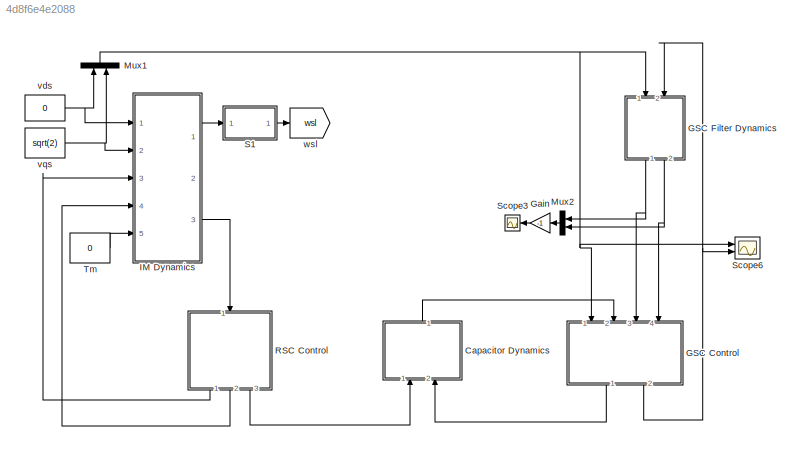
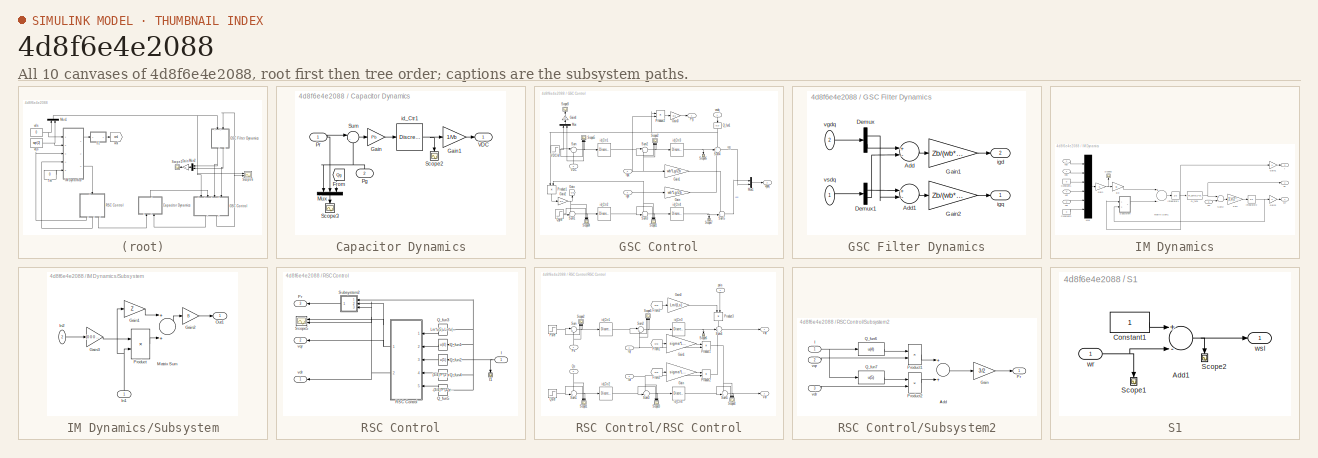
[diagram: thumbnail index - all 10 canvases of the model, root first then tree order]
MODEL slx_4d8f6e4e2088
KIND model
BLOCK [SubSystem] Capacitor Dynamics
  FunctionWithSeparateData = off
  MaskHideContents = off
  MinAlgLoopOccurrences = off
  Opaque = off
  Ports = [2, 1]
  PropExecContextOutsideSubsystem = off
  RTWSystemCode = Auto
  RequestExecContextInheritance = off
BLOCK [From] Capacitor Dynamics/From
  GotoTag = Qg
  TagVisibility = global
BLOCK [Gain] Capacitor Dynamics/Gain
  Gain = Pb
  OutDataTypeStr = Inherit: Inherit via internal rule
  ParamDataTypeStr = Inherit: Inherit via internal rule
  SaturateOnIntegerOverflow = off
BLOCK [Gain] Capacitor Dynamics/Gain1
  Gain = 1/Vb
  OutDataTypeStr = Inherit: Inherit via internal rule
  ParamDataTypeStr = Inherit: Inherit via internal rule
  SaturateOnIntegerOverflow = off
BLOCK [Mux] Capacitor Dynamics/Mux
  DisplayOption = bar
  Inputs = 3
  Ports = [3, 1]
BLOCK [Inport] Capacitor Dynamics/Pg
  IconDisplay = Port number
  Port = 2
BLOCK [Inport] Capacitor Dynamics/Pr
  IconDisplay = Port number
BLOCK [Scope] Capacitor Dynamics/Scope2
  DataFormat = StructureWithTime
  Floating = off
  LimitDataPoints = off
  NumInputPorts = 1
  Ports = [1]
  SampleTime = 0
  SaveName = ScopeData5
  ShowLegends = off
  YMax = 1230
  YMin = 1190
BLOCK [Scope] Capacitor Dynamics/Scope3
  DataFormat = StructureWithTime
  Floating = off
  LimitDataPoints = off
  NumInputPorts = 1
  Ports = [1]
  SampleTime = 0
  SaveName = ScopeData12
  ShowLegends = off
  YMax = 0.2
  YMin = -0.5
  ZoomMode = xonly
BLOCK [Sum] Capacitor Dynamics/Sum
  IconShape = round
  InputSameDT = off
  Inputs = |--
  OutDataTypeStr = Inherit: Inherit via internal rule
  Ports = [2, 1]
  SaturateOnIntegerOverflow = off
BLOCK [Outport] Capacitor Dynamics/VDC
  IconDisplay = Port number
BLOCK [Reference] Capacitor Dynamics/id_Ctr1  REF=powerlib_extras/Discrete 
Control Blocks/Discrete
PI Controller
  Init = 1200
  Ki = 1/(C*VDC0)
  Kp = 0
  Par_Limits = [10e5 -10e5]
  Ports = [1, 1]
  SourceBlock = powerlib_extras/Discrete \nControl Blocks/Discrete\nPI Controller
  SourceType = Discrete PI Controller
  Ts = 50e-6
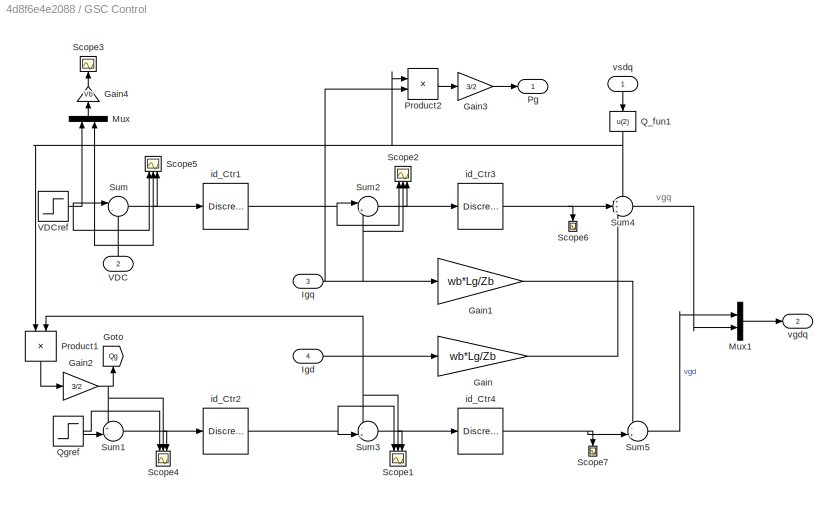
BLOCK [SubSystem] GSC Control
  FunctionWithSeparateData = off
  MaskHideContents = off
  MinAlgLoopOccurrences = off
  Opaque = off
  Ports = [4, 2]
  PropExecContextOutsideSubsystem = off
  RTWSystemCode = Auto
  RequestExecContextInheritance = off
BLOCK [Gain] GSC Control/Gain
  Gain = wb*Lg/Zb
  OutDataTypeStr = Inherit: Inherit via internal rule
  ParamDataTypeStr = Inherit: Inherit via internal rule
  SaturateOnIntegerOverflow = off
BLOCK [Gain] GSC Control/Gain1
  Gain = wb*Lg/Zb
  OutDataTypeStr = Inherit: Inherit via internal rule
  ParamDataTypeStr = Inherit: Inherit via internal rule
  SaturateOnIntegerOverflow = off
BLOCK [Gain] GSC Control/Gain2
  Gain = 3/2
  OutDataTypeStr = Inherit: Inherit via internal rule
  ParamDataTypeStr = Inherit: Inherit via internal rule
  SaturateOnIntegerOverflow = off
BLOCK [Gain] GSC Control/Gain3
  Gain = 3/2
  OutDataTypeStr = Inherit: Inherit via internal rule
  ParamDataTypeStr = Inherit: Inherit via internal rule
  SaturateOnIntegerOverflow = off
BLOCK [Gain] GSC Control/Gain4
  Gain = Vb
  OutDataTypeStr = Inherit: Inherit via internal rule
  ParamDataTypeStr = Inherit: Inherit via internal rule
  SaturateOnIntegerOverflow = off
BLOCK [Goto] GSC Control/Goto
  GotoTag = Qg
  TagVisibility = global
BLOCK [Inport] GSC Control/Igd
  IconDisplay = Port number
  Port = 4
BLOCK [Inport] GSC Control/Igq
  IconDisplay = Port number
  Port = 3
BLOCK [Mux] GSC Control/Mux
  DisplayOption = bar
  Inputs = 2
  Ports = [2, 1]
BLOCK [Mux] GSC Control/Mux1
  DisplayOption = bar
  Inputs = 2
  Ports = [2, 1]
BLOCK [Outport] GSC Control/Pg
  IconDisplay = Port number
BLOCK [Product] GSC Control/Product1
  InputSameDT = off
  OutDataTypeStr = Inherit: Inherit via internal rule
  Ports = [2, 1]
  RndMeth = Floor
  SaturateOnIntegerOverflow = off
BLOCK [Product] GSC Control/Product2
  InputSameDT = off
  OutDataTypeStr = Inherit: Inherit via internal rule
  Ports = [2, 1]
  RndMeth = Floor
  SaturateOnIntegerOverflow = off
BLOCK [Fcn] GSC Control/Q_fun1
  Expr = u(2)
BLOCK [Step] GSC Control/Qgref
  After = 0
  SampleTime = 0
BLOCK [Scope] GSC Control/Scope1
  DataFormat = StructureWithTime
  Floating = off
  LimitDataPoints = off
  NumInputPorts = 3
  Ports = [3]
  SampleTime = 0
  SaveName = ScopeData6
  ShowLegends = off
  YMax = 5~5~0.1
  YMin = -15~-15~-0.1
  ZoomMode = yonly
BLOCK [Scope] GSC Control/Scope2
  DataFormat = StructureWithTime
  Floating = off
  LimitDataPoints = off
  NumInputPorts = 3
  Ports = [3]
  SampleTime = 0
  SaveName = ScopeData2
  ShowLegends = off
  YMax = 0.1~0.5~0.1
  YMin = -0.5~-0.5~-0.1
  ZoomMode = yonly
BLOCK [Scope] GSC Control/Scope3
  DataFormat = StructureWithTime
  Floating = off
  LimitDataPoints = off
  NumInputPorts = 1
  Ports = [1]
  SampleTime = 0
  SaveName = ScopeData22
  ShowLegends = off
  YMax = 1225
  YMin = 1195
  ZoomMode = xonly
BLOCK [Scope] GSC Control/Scope4
  DataFormat = StructureWithTime
  Floating = off
  LimitDataPoints = off
  NumInputPorts = 3
  Ports = [3]
  SampleTime = 0
  SaveName = ScopeData9
  ShowLegends = off
  YMax = 1~0.5~0.5
  YMin = -1~-0.5~-0.5
BLOCK [Scope] GSC Control/Scope5
  DataFormat = StructureWithTime
  Floating = off
  LimitDataPoints = off
  NumInputPorts = 3
  Ports = [3]
  SampleTime = 0
  SaveName = ScopeData11
  ShowLegends = off
  YMax = 3.07~3.065~0.055
  YMin = 3~3.01~-0.055
  ZoomMode = xonly
BLOCK [Scope] GSC Control/Scope6
  DataFormat = StructureWithTime
  Floating = off
  LimitDataPoints = off
  NumInputPorts = 1
  Ports = [1]
  SampleTime = 0
  SaveName = ScopeData24
  ShowLegends = off
  YMax = 1
  YMin = -1
  ZoomMode = yonly
BLOCK [Scope] GSC Control/Scope7
  DataFormat = StructureWithTime
  Floating = off
  LimitDataPoints = off
  NumInputPorts = 1
  Ports = [1]
  SampleTime = 0
  SaveName = ScopeData25
  ShowLegends = off
  YMax = 1
  YMin = -1
  ZoomMode = yonly
BLOCK [Sum] GSC Control/Sum
  IconShape = round
  InputSameDT = off
  Inputs = |-+
  OutDataTypeStr = Inherit: Inherit via internal rule
  Ports = [2, 1]
  SaturateOnIntegerOverflow = off
BLOCK [Sum] GSC Control/Sum1
  IconShape = round
  InputSameDT = off
  Inputs = +-|
  OutDataTypeStr = Inherit: Inherit via internal rule
  Ports = [2, 1]
  SaturateOnIntegerOverflow = off
BLOCK [Sum] GSC Control/Sum2
  IconShape = round
  InputSameDT = off
  Inputs = |+-
  OutDataTypeStr = Inherit: Inherit via internal rule
  Ports = [2, 1]
  SaturateOnIntegerOverflow = off
BLOCK [Sum] GSC Control/Sum3
  IconShape = round
  InputSameDT = off
  Inputs = -+|
  OutDataTypeStr = Inherit: Inherit via internal rule
  Ports = [2, 1]
  SaturateOnIntegerOverflow = off
BLOCK [Sum] GSC Control/Sum4
  IconShape = round
  InputSameDT = off
  Inputs = +++
  OutDataTypeStr = Inherit: Inherit via internal rule
  Ports = [3, 1]
  SaturateOnIntegerOverflow = off
BLOCK [Sum] GSC Control/Sum5
  IconShape = round
  InputSameDT = off
  Inputs = -+|
  OutDataTypeStr = Inherit: Inherit via internal rule
  Ports = [2, 1]
  SaturateOnIntegerOverflow = off
BLOCK [Inport] GSC Control/VDC
  IconDisplay = Port number
  Port = 2
BLOCK [Step] GSC Control/VDCref
  After = 1220/Vb
  Before = 1200/Vb
  SampleTime = 0
  Time = 20
BLOCK [Reference] GSC Control/id_Ctr1  REF=powerlib_extras/Discrete 
Control Blocks/Discrete
PI Controller
  Init = 0
  Ki = Ki
  Kp = Kp
  Par_Limits = [10e5 -10e5]
  Ports = [1, 1]
  SourceBlock = powerlib_extras/Discrete \nControl Blocks/Discrete\nPI Controller
  SourceType = Discrete PI Controller
  Ts = 50e-6
BLOCK [Reference] GSC Control/id_Ctr2  REF=powerlib_extras/Discrete 
Control Blocks/Discrete
PI Controller
  Init = -0.0301
  Ki = Ki
  Kp = Kp
  Par_Limits = [10e5 -10e5]
  Ports = [1, 1]
  SourceBlock = powerlib_extras/Discrete \nControl Blocks/Discrete\nPI Controller
  SourceType = Discrete PI Controller
  Ts = 50e-6
BLOCK [Reference] GSC Control/id_Ctr3  REF=powerlib_extras/Discrete 
Control Blocks/Discrete
PI Controller
  Init = 0
  Ki = Ki
  Kp = Kp
  Par_Limits = [10e5 -10e5]
  Ports = [1, 1]
  SourceBlock = powerlib_extras/Discrete \nControl Blocks/Discrete\nPI Controller
  SourceType = Discrete PI Controller
  Ts = 50e-6
BLOCK [Reference] GSC Control/id_Ctr4  REF=powerlib_extras/Discrete 
Control Blocks/Discrete
PI Controller
  Init = 0
  Ki = Ki
  Kp = Kp
  Par_Limits = [10e5 -10e5]
  Ports = [1, 1]
  SourceBlock = powerlib_extras/Discrete \nControl Blocks/Discrete\nPI Controller
  SourceType = Discrete PI Controller
  Ts = 50e-6
BLOCK [Outport] GSC Control/vgdq
  IconDisplay = Port number
  Port = 2
BLOCK [Inport] GSC Control/vsdq
  IconDisplay = Port number
BLOCK [SubSystem] GSC Filter Dynamics
  FunctionWithSeparateData = off
  MaskHideContents = off
  MinAlgLoopOccurrences = off
  Opaque = off
  Ports = [2, 2]
  PropExecContextOutsideSubsystem = off
  RTWSystemCode = Auto
  RequestExecContextInheritance = off
BLOCK [Sum] GSC Filter Dynamics/Add
  InputSameDT = off
  Inputs = +-
  OutDataTypeStr = Inherit: Inherit via internal rule
  Ports = [2, 1]
  SaturateOnIntegerOverflow = off
BLOCK [Sum] GSC Filter Dynamics/Add1
  InputSameDT = off
  Inputs = +-
  OutDataTypeStr = Inherit: Inherit via internal rule
  Ports = [2, 1]
  SaturateOnIntegerOverflow = off
BLOCK [Demux] GSC Filter Dynamics/Demux
  DisplayOption = bar
  Outputs = 2
  Ports = [1, 2]
BLOCK [Demux] GSC Filter Dynamics/Demux1
  DisplayOption = bar
  Outputs = 2
  Ports = [1, 2]
BLOCK [Gain] GSC Filter Dynamics/Gain1
  Gain = Zb/(wb*Lg)
  OutDataTypeStr = Inherit: Inherit via internal rule
  ParamDataTypeStr = Inherit: Inherit via internal rule
  SaturateOnIntegerOverflow = off
BLOCK [Gain] GSC Filter Dynamics/Gain2
  Gain = Zb/(wb*Lg)
  OutDataTypeStr = Inherit: Inherit via internal rule
  ParamDataTypeStr = Inherit: Inherit via internal rule
  SaturateOnIntegerOverflow = off
BLOCK [Outport] GSC Filter Dynamics/igd
  IconDisplay = Port number
  Port = 2
BLOCK [Outport] GSC Filter Dynamics/igq
  IconDisplay = Port number
BLOCK [Inport] GSC Filter Dynamics/vgdq
  IconDisplay = Port number
  Port = 2
BLOCK [Inport] GSC Filter Dynamics/vsdq
  IconDisplay = Port number
BLOCK [Gain] Gain
  Gain = -1
  OutDataTypeStr = Inherit: Inherit via internal rule
  ParamDataTypeStr = Inherit: Inherit via internal rule
  SaturateOnIntegerOverflow = off
BLOCK [SubSystem] IM Dynamics
  FunctionWithSeparateData = off
  MaskHideContents = off
  MinAlgLoopOccurrences = off
  Opaque = off
  Ports = [5, 3]
  PropExecContextOutsideSubsystem = off
  RTWSystemCode = Auto
  RequestExecContextInheritance = off
BLOCK [Gain] IM Dynamics/1//2H
  Gain = (1)/(2*H)
  OutDataTypeStr = Inherit: Inherit via internal rule
  ParamDataTypeStr = Inherit: Inherit via internal rule
  SaturateOnIntegerOverflow = off
BLOCK [Gain] IM Dynamics/Bb
  Gain = B
  Multiplication = Matrix(K*u)
  OutDataTypeStr = Inherit: Inherit via internal rule
  ParamDataTypeStr = Inherit: Inherit via internal rule
  SaturateOnIntegerOverflow = off
BLOCK [Constant] IM Dynamics/Constant1
  Value = 0
BLOCK [Constant] IM Dynamics/Constant2
  Value = 0
BLOCK [Gain] IM Dynamics/Gain
  OutDataTypeStr = Inherit: Inherit via internal rule
  ParamDataTypeStr = Inherit: Inherit via internal rule
  SaturateOnIntegerOverflow = off
BLOCK [Gain] IM Dynamics/Gain1
  OutDataTypeStr = Inherit: Inherit via internal rule
  ParamDataTypeStr = Inherit: Inherit via internal rule
  SaturateOnIntegerOverflow = off
BLOCK [Gain] IM Dynamics/Gain2
  OutDataTypeStr = Inherit: Inherit via internal rule
  ParamDataTypeStr = Inherit: Inherit via internal rule
  SaturateOnIntegerOverflow = off
BLOCK [Outport] IM Dynamics/I
  IconDisplay = Port number
  Port = 3
BLOCK [Integrator] IM Dynamics/Integrator1
  InitialCondition = [-0.57; 0; 0; 0.57; 0.358; 0]
  Ports = [1, 1]
BLOCK [Integrator] IM Dynamics/Integrator2
  InitialCondition = 0.95
  LimitOutput = on
  LowerSaturationLimit = 0.94999999999
  Ports = [1, 1]
  UpperSaturationLimit = 0.95000000001
BLOCK [Sum] IM Dynamics/Matrix Sum1
  InputSameDT = off
  Inputs = +-
  OutDataTypeStr = Inherit: Inherit via internal rule
  Ports = [2, 1]
  SaturateOnIntegerOverflow = off
BLOCK [Mux] IM Dynamics/Mux
  DisplayOption = bar
  Inputs = 6
  Ports = [6, 1]
BLOCK [Fcn] IM Dynamics/Q_fun1
  Expr = Xm_pu*u(1)*u(5)-Xm_pu*u(2)*u(4)
BLOCK [Scope] IM Dynamics/Scope2
  DataFormat = StructureWithTime
  Floating = off
  LimitDataPoints = off
  NumInputPorts = 1
  Ports = [1]
  SampleTime = 0
  SaveName = ScopeData8
  ShowLegends = off
  YMax = 1.05e+06
  YMin = 950000
  ZoomMode = yonly
BLOCK [SubSystem] IM Dynamics/Subsystem
  FunctionWithSeparateData = off
  MaskHideContents = off
  MinAlgLoopOccurrences = off
  Opaque = off
  Ports = [2, 1]
  PropExecContextOutsideSubsystem = off
  RTWSystemCode = Auto
  RequestExecContextInheritance = off
BLOCK [Gain] IM Dynamics/Subsystem/Gain1
  Gain = Z
  Multiplication = Matrix(K*u)
  OutDataTypeStr = Inherit: Inherit via internal rule
  ParamDataTypeStr = Inherit: Inherit via internal rule
  SaturateOnIntegerOverflow = off
BLOCK [Gain] IM Dynamics/Subsystem/Gain2
  Gain = B
  Multiplication = Matrix(K*u)
  OutDataTypeStr = Inherit: Inherit via internal rule
  ParamDataTypeStr = Inherit: Inherit via internal rule
  SaturateOnIntegerOverflow = off
BLOCK [Gain] IM Dynamics/Subsystem/Gain3
  Gain = [0 0 0 0 0 0;0 0 0 0 0 0;0 0 0 0 0 0;0 -Xm_pu 0 0 -Xr_pu 0;Xm_pu 0 0 Xr_pu 0 0;0 0 0 0 0 0]
  OutDataTypeStr = Inherit: Inherit via internal rule
  ParamDataTypeStr = Inherit: Inherit via internal rule
  SaturateOnIntegerOverflow = off
BLOCK [Inport] IM Dynamics/Subsystem/In1
  IconDisplay = Port number
BLOCK [Inport] IM Dynamics/Subsystem/In2
  IconDisplay = Port number
  Port = 2
BLOCK [Sum] IM Dynamics/Subsystem/Matrix Sum
  InputSameDT = off
  OutDataTypeStr = Inherit: Inherit via internal rule
  Ports = [2, 1]
  SaturateOnIntegerOverflow = off
BLOCK [Outport] IM Dynamics/Subsystem/Out1
  IconDisplay = Port number
BLOCK [Product] IM Dynamics/Subsystem/Product
  InputSameDT = off
  Multiplication = Matrix(*)
  OutDataTypeStr = Inherit: Inherit via internal rule
  Ports = [2, 1]
  RndMeth = Floor
  SaturateOnIntegerOverflow = off
BLOCK [Sum] IM Dynamics/Sum2
  Inputs = +-
  Ports = [2, 1]
BLOCK [Outport] IM Dynamics/Te
  IconDisplay = Port number
  Port = 2
BLOCK [Inport] IM Dynamics/Tm
  IconDisplay = Port number
  Port = 5
BLOCK [Inport] IM Dynamics/vdr
  IconDisplay = Port number
  Port = 3
BLOCK [Inport] IM Dynamics/vds
  IconDisplay = Port number
BLOCK [Inport] IM Dynamics/vqr
  IconDisplay = Port number
  Port = 4
BLOCK [Inport] IM Dynamics/vqs
  IconDisplay = Port number
  Port = 2
BLOCK [Outport] IM Dynamics/wr
  IconDisplay = Port number
BLOCK [Mux] Mux1
  DisplayOption = bar
  Inputs = 2
  Ports = [2, 1]
BLOCK [Mux] Mux2
  DisplayOption = bar
  Inputs = 2
  Ports = [2, 1]
BLOCK [SubSystem] RSC Control
  FunctionWithSeparateData = off
  MaskHideContents = off
  MinAlgLoopOccurrences = off
  Opaque = off
  Ports = [1, 3]
  PropExecContextOutsideSubsystem = off
  RTWSystemCode = Auto
  RequestExecContextInheritance = off
BLOCK [Inport] RSC Control/I
  IconDisplay = Port number
BLOCK [Scope] RSC Control/I1
  DataFormat = StructureWithTime
  Floating = off
  LimitDataPoints = off
  NumInputPorts = 1
  Ports = [1]
  SampleTime = 0
  SaveName = ScopeData1
  ShowLegends = off
  YMax = 1
  YMin = -1
  ZoomMode = yonly
BLOCK [Outport] RSC Control/Pr
  IconDisplay = Port number
  Port = 3
BLOCK [Fcn] RSC Control/Q_fun1
  Expr = u(4)
BLOCK [Fcn] RSC Control/Q_fun2
  Expr = u(5)
BLOCK [Fcn] RSC Control/Q_fun3
  Expr = Lm*u(5)+Ls*u(2)
BLOCK [Fcn] RSC Control/Q_fun4
  Expr = (3/4)*P*(2*pi*f)*(Lm/Ls)*(Lm*u(5)+Ls*u(2))*u(4)
BLOCK [Fcn] RSC Control/Q_fun5
  Expr = -(3/4)*P*(2*pi*f)*(Lm*u(5)+Ls*u(2))*u(2)
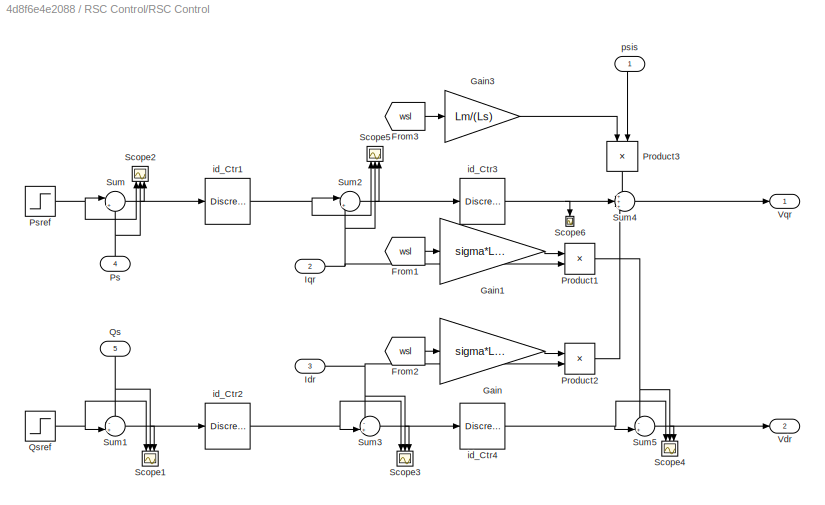
BLOCK [SubSystem] RSC Control/RSC Control
  FunctionWithSeparateData = off
  MaskHideContents = off
  MinAlgLoopOccurrences = off
  Opaque = off
  Ports = [5, 2]
  PropExecContextOutsideSubsystem = off
  RTWSystemCode = Auto
  RequestExecContextInheritance = off
BLOCK [From] RSC Control/RSC Control/From1
  GotoTag = wsl
  TagVisibility = global
BLOCK [From] RSC Control/RSC Control/From2
  GotoTag = wsl
  TagVisibility = global
BLOCK [From] RSC Control/RSC Control/From3
  GotoTag = wsl
  TagVisibility = global
BLOCK [Gain] RSC Control/RSC Control/Gain
  Gain = sigma*Lr/(Zb/wb)
  OutDataTypeStr = Inherit: Inherit via internal rule
  ParamDataTypeStr = Inherit: Inherit via internal rule
  SaturateOnIntegerOverflow = off
BLOCK [Gain] RSC Control/RSC Control/Gain1
  Gain = sigma*Lr/(Zb/wb)
  OutDataTypeStr = Inherit: Inherit via internal rule
  ParamDataTypeStr = Inherit: Inherit via internal rule
  SaturateOnIntegerOverflow = off
BLOCK [Gain] RSC Control/RSC Control/Gain3
  Gain = Lm/(Ls)
  OutDataTypeStr = Inherit: Inherit via internal rule
  ParamDataTypeStr = Inherit: Inherit via internal rule
  SaturateOnIntegerOverflow = off
BLOCK [Inport] RSC Control/RSC Control/Idr
  IconDisplay = Port number
  Port = 3
BLOCK [Inport] RSC Control/RSC Control/Iqr
  IconDisplay = Port number
  Port = 2
BLOCK [Product] RSC Control/RSC Control/Product1
  InputSameDT = off
  OutDataTypeStr = Inherit: Inherit via internal rule
  Ports = [2, 1]
  RndMeth = Floor
  SaturateOnIntegerOverflow = off
BLOCK [Product] RSC Control/RSC Control/Product2
  InputSameDT = off
  OutDataTypeStr = Inherit: Inherit via internal rule
  Ports = [2, 1]
  RndMeth = Floor
  SaturateOnIntegerOverflow = off
BLOCK [Product] RSC Control/RSC Control/Product3
  InputSameDT = off
  OutDataTypeStr = Inherit: Inherit via internal rule
  Ports = [2, 1]
  RndMeth = Floor
  SaturateOnIntegerOverflow = off
BLOCK [Inport] RSC Control/RSC Control/Ps
  IconDisplay = Port number
  Port = 4
BLOCK [Step] RSC Control/RSC Control/Psref
  After = 0.95*0.95*0.95
  Before = 0.95*0.95*0.95
  SampleTime = 0
BLOCK [Inport] RSC Control/RSC Control/Qs
  IconDisplay = Port number
  Port = 5
BLOCK [Step] RSC Control/RSC Control/Qsref
  After = 0
  SampleTime = 0
BLOCK [Scope] RSC Control/RSC Control/Scope1
  DataFormat = StructureWithTime
  Floating = off
  LimitDataPoints = off
  NumInputPorts = 3
  Ports = [3]
  SampleTime = 0
  SaveName = ScopeData4
  ShowLegends = off
  YMax = 1~1~0.1
  YMin = -1~-1~-0.1
  ZoomMode = yonly
BLOCK [Scope] RSC Control/RSC Control/Scope2
  DataFormat = StructureWithTime
  Floating = off
  LimitDataPoints = off
  NumInputPorts = 3
  Ports = [3]
  SampleTime = 0
  SaveName = ScopeData3
  ShowLegends = off
  YMax = 0.900244~0.900244~0.2
  YMin = 0.814506~0.814506~-0.2
  ZoomMode = yonly
BLOCK [Scope] RSC Control/RSC Control/Scope3
  DataFormat = StructureWithTime
  Floating = off
  LimitDataPoints = off
  NumInputPorts = 3
  Ports = [3]
  SampleTime = 0
  SaveName = ScopeData7
  ShowLegends = off
  YMax = 0.266668~0.266668~0.1
  YMin = 0.241271~0.241271~-0.1
  ZoomMode = yonly
BLOCK [Scope] RSC Control/RSC Control/Scope4
  DataFormat = StructureWithTime
  Floating = off
  LimitDataPoints = off
  NumInputPorts = 3
  Ports = [3]
  SampleTime = 0
  SaveName = ScopeData17
  ShowLegends = off
  YMax = 0.00146401~0.0081279~-0.00602923
  YMin = 0.00132459~0.00735382~-0.00666389
  ZoomMode = yonly
BLOCK [Scope] RSC Control/RSC Control/Scope5
  DataFormat = StructureWithTime
  Floating = off
  LimitDataPoints = off
  NumInputPorts = 3
  Ports = [3]
  SampleTime = 0
  SaveName = ScopeData20
  ShowLegends = off
  YMax = 0.578047~0.578038~1.25e-05
  YMin = 0.578025~0.578034~-1.25e-05
  ZoomMode = yonly
BLOCK [Scope] RSC Control/RSC Control/Scope6
  DataFormat = StructureWithTime
  Floating = off
  LimitDataPoints = off
  NumInputPorts = 1
  Ports = [1]
  SampleTime = 0
  ShowLegends = off
  YMax = 1
  YMin = -1
  ZoomMode = yonly
BLOCK [Sum] RSC Control/RSC Control/Sum
  IconShape = round
  InputSameDT = off
  Inputs = |+-
  OutDataTypeStr = Inherit: Inherit via internal rule
  Ports = [2, 1]
  SaturateOnIntegerOverflow = off
BLOCK [Sum] RSC Control/RSC Control/Sum1
  IconShape = round
  InputSameDT = off
  Inputs = -+|
  OutDataTypeStr = Inherit: Inherit via internal rule
  Ports = [2, 1]
  SaturateOnIntegerOverflow = off
BLOCK [Sum] RSC Control/RSC Control/Sum2
  IconShape = round
  InputSameDT = off
  Inputs = |+-
  OutDataTypeStr = Inherit: Inherit via internal rule
  Ports = [2, 1]
  SaturateOnIntegerOverflow = off
BLOCK [Sum] RSC Control/RSC Control/Sum3
  IconShape = round
  InputSameDT = off
  Inputs = -+|
  OutDataTypeStr = Inherit: Inherit via internal rule
  Ports = [2, 1]
  SaturateOnIntegerOverflow = off
BLOCK [Sum] RSC Control/RSC Control/Sum4
  IconShape = round
  InputSameDT = off
  Inputs = +++
  OutDataTypeStr = Inherit: Inherit via internal rule
  Ports = [3, 1]
  SaturateOnIntegerOverflow = off
BLOCK [Sum] RSC Control/RSC Control/Sum5
  IconShape = round
  InputSameDT = off
  Inputs = -+|
  OutDataTypeStr = Inherit: Inherit via internal rule
  Ports = [2, 1]
  SaturateOnIntegerOverflow = off
BLOCK [Outport] RSC Control/RSC Control/Vdr
  IconDisplay = Port number
  Port = 2
BLOCK [Outport] RSC Control/RSC Control/Vqr
  IconDisplay = Port number
BLOCK [Reference] RSC Control/RSC Control/id_Ctr1  REF=powerlib_extras/Discrete 
Control Blocks/Discrete
PI Controller
  Init = 0.578
  Ki = Ki
  Kp = Kp
  Par_Limits = [10e5 -10e5]
  Ports = [1, 1]
  SourceBlock = powerlib_extras/Discrete \nControl Blocks/Discrete\nPI Controller
  SourceType = Discrete PI Controller
  Ts = 50e-6
BLOCK [Reference] RSC Control/RSC Control/id_Ctr2  REF=powerlib_extras/Discrete 
Control Blocks/Discrete
PI Controller
  Init = 0.3585
  Ki = Ki
  Kp = Kp
  Par_Limits = [10e5 -10e5]
  Ports = [1, 1]
  SourceBlock = powerlib_extras/Discrete \nControl Blocks/Discrete\nPI Controller
  SourceType = Discrete PI Controller
  Ts = 50e-6
BLOCK [Reference] RSC Control/RSC Control/id_Ctr3  REF=powerlib_extras/Discrete 
Control Blocks/Discrete
PI Controller
  Init = 0.0723
  Ki = Ki
  Kp = Kp
  Par_Limits = [10e5 -10e5]
  Ports = [1, 1]
  SourceBlock = powerlib_extras/Discrete \nControl Blocks/Discrete\nPI Controller
  SourceType = Discrete PI Controller
  Ts = 50e-6
BLOCK [Reference] RSC Control/RSC Control/id_Ctr4  REF=powerlib_extras/Discrete 
Control Blocks/Discrete
PI Controller
  Init = 0.00198
  Ki = Ki
  Kp = Kp
  Par_Limits = [10e5 -10e5]
  Ports = [1, 1]
  SourceBlock = powerlib_extras/Discrete \nControl Blocks/Discrete\nPI Controller
  SourceType = Discrete PI Controller
  Ts = 50e-6
BLOCK [Inport] RSC Control/RSC Control/psis
  IconDisplay = Port number
BLOCK [Scope] RSC Control/Scope5
  DataFormat = StructureWithTime
  Floating = off
  LimitDataPoints = off
  NumInputPorts = 2
  Ports = [2]
  SampleTime = 0
  SaveName = ScopeData15
  ShowLegends = off
  YMax = 1~1
  YMin = -1~-1
  ZoomMode = yonly
BLOCK [SubSystem] RSC Control/Subsystem2
  FunctionWithSeparateData = off
  MaskHideContents = off
  MinAlgLoopOccurrences = off
  Opaque = off
  Ports = [3, 1]
  PropExecContextOutsideSubsystem = off
  RTWSystemCode = Auto
  RequestExecContextInheritance = off
BLOCK [Sum] RSC Control/Subsystem2/Add
  InputSameDT = off
  OutDataTypeStr = Inherit: Inherit via internal rule
  Ports = [2, 1]
  SaturateOnIntegerOverflow = off
BLOCK [Gain] RSC Control/Subsystem2/Gain
  Gain = 3/2
  OutDataTypeStr = Inherit: Inherit via internal rule
  ParamDataTypeStr = Inherit: Inherit via internal rule
  SaturateOnIntegerOverflow = off
BLOCK [Inport] RSC Control/Subsystem2/I
  IconDisplay = Port number
BLOCK [Outport] RSC Control/Subsystem2/Pr
  IconDisplay = Port number
BLOCK [Product] RSC Control/Subsystem2/Product1
  InputSameDT = off
  OutDataTypeStr = Inherit: Inherit via internal rule
  Ports = [2, 1]
  RndMeth = Floor
  SaturateOnIntegerOverflow = off
BLOCK [Product] RSC Control/Subsystem2/Product2
  InputSameDT = off
  OutDataTypeStr = Inherit: Inherit via internal rule
  Ports = [2, 1]
  RndMeth = Floor
  SaturateOnIntegerOverflow = off
BLOCK [Fcn] RSC Control/Subsystem2/Q_fun6
  Expr = u(4)
BLOCK [Fcn] RSC Control/Subsystem2/Q_fun7
  Expr = u(5)
BLOCK [Inport] RSC Control/Subsystem2/vdr
  IconDisplay = Port number
  Port = 3
BLOCK [Inport] RSC Control/Subsystem2/vqr
  IconDisplay = Port number
  Port = 2
BLOCK [Outport] RSC Control/vdr
  IconDisplay = Port number
BLOCK [Outport] RSC Control/vqr
  IconDisplay = Port number
  Port = 2
BLOCK [SubSystem] S1
  FunctionWithSeparateData = off
  MaskHideContents = off
  MinAlgLoopOccurrences = off
  Opaque = off
  Ports = [1, 1]
  PropExecContextOutsideSubsystem = off
  RTWSystemCode = Auto
  RequestExecContextInheritance = off
BLOCK [Sum] S1/Add1
  InputSameDT = off
  Inputs = +-
  OutDataTypeStr = Inherit: Inherit via internal rule
  Ports = [2, 1]
  SaturateOnIntegerOverflow = off
BLOCK [Constant] S1/Constant1
BLOCK [Scope] S1/Scope1
  DataFormat = StructureWithTime
  Floating = off
  LimitDataPoints = off
  NumInputPorts = 1
  Ports = [1]
  SampleTime = 0
  SaveName = ScopeData13
  ShowLegends = off
  YMax = 0.9975
  YMin = 0.9025
  ZoomMode = yonly
BLOCK [Scope] S1/Scope2
  DataFormat = StructureWithTime
  Floating = off
  LimitDataPoints = off
  NumInputPorts = 1
  Ports = [1]
  SampleTime = 0
  SaveName = ScopeData18
  ShowLegends = off
  YMax = 0.0525
  YMin = 0.0475
  ZoomMode = yonly
BLOCK [Inport] S1/wr
  IconDisplay = Port number
BLOCK [Outport] S1/wsl
  IconDisplay = Port number
BLOCK [Scope] Scope3
  DataFormat = StructureWithTime
  Floating = off
  LimitDataPoints = off
  NumInputPorts = 1
  Ports = [1]
  SampleTime = 0
  SaveName = ScopeData10
  ShowLegends = off
  YMax = 0.2
  YMin = -0.2
  ZoomMode = xonly
BLOCK [Scope] Scope6
  DataFormat = StructureWithTime
  Floating = off
  LimitDataPoints = off
  NumInputPorts = 2
  Ports = [2]
  SampleTime = 0
  SaveName = ScopeData16
  ShowLegends = off
  YMax = 1.5~1.5
  YMin = 0~0
  ZoomMode = yonly
BLOCK [Constant] Tm
  Value = 0
BLOCK [Constant] vds
  Value = 0
BLOCK [Constant] vqs
  Value = sqrt(2)
BLOCK [Goto] wsl
  GotoTag = wsl
  TagVisibility = global
ANNOTATION GSC Control: vgq
LINE Capacitor Dynamics/From:1 -> Capacitor Dynamics/Mux:3
LINE Capacitor Dynamics/Gain1:1 -> Capacitor Dynamics/VDC:1
LINE Capacitor Dynamics/Gain:1 -> Capacitor Dynamics/id_Ctr1:1
LINE Capacitor Dynamics/Mux:1 -> Capacitor Dynamics/Scope3:1
NET Capacitor Dynamics/Pg:1 -> Capacitor Dynamics/Mux:1, Capacitor Dynamics/Sum:2
NET Capacitor Dynamics/Pr:1 -> Capacitor Dynamics/Mux:2, Capacitor Dynamics/Sum:1
LINE Capacitor Dynamics/Sum:1 -> Capacitor Dynamics/Gain:1
NET Capacitor Dynamics/id_Ctr1:1 -> Capacitor Dynamics/Gain1:1, Capacitor Dynamics/Scope2:1
LINE Capacitor Dynamics:1 -> GSC Control:2
LINE GSC Control/Gain1:1 -> GSC Control/Sum5:1
NET GSC Control/Gain2:1 -> GSC Control/Goto:1, GSC Control/Scope4:2, GSC Control/Sum1:1
LINE GSC Control/Gain3:1 -> GSC Control/Pg:1
LINE GSC Control/Gain4:1 -> GSC Control/Scope3:1
LINE GSC Control/Gain:1 -> GSC Control/Sum4:3
NET GSC Control/Igd:1 -> GSC Control/Gain:1, GSC Control/Product1:2, GSC Control/Scope1:2, GSC Control/Sum3:1
NET GSC Control/Igq:1 -> GSC Control/Gain1:1, GSC Control/Product2:2, GSC Control/Scope2:2, GSC Control/Sum2:2
LINE GSC Control/Mux1:1 -> GSC Control/vgdq:1
LINE GSC Control/Mux:1 -> GSC Control/Gain4:1
LINE GSC Control/Product1:1 -> GSC Control/Gain2:1
LINE GSC Control/Product2:1 -> GSC Control/Gain3:1
NET GSC Control/Q_fun1:1 -> GSC Control/Product1:1, GSC Control/Product2:1, GSC Control/Sum4:1
NET GSC Control/Qgref:1 -> GSC Control/Scope4:1, GSC Control/Sum1:2
NET GSC Control/Sum1:1 -> GSC Control/Scope4:3, GSC Control/id_Ctr2:1
NET GSC Control/Sum2:1 -> GSC Control/Scope2:3, GSC Control/id_Ctr3:1
NET GSC Control/Sum3:1 -> GSC Control/Scope1:3, GSC Control/id_Ctr4:1
LINE GSC Control/Sum4:1 -> GSC Control/Mux1:2
LINE GSC Control/Sum5:1 -> GSC Control/Mux1:1
NET GSC Control/Sum:1 -> GSC Control/Scope5:3, GSC Control/id_Ctr1:1
NET GSC Control/VDC:1 -> GSC Control/Mux:2, GSC Control/Scope5:2, GSC Control/Sum:2
NET GSC Control/VDCref:1 -> GSC Control/Mux:1, GSC Control/Scope5:1, GSC Control/Sum:1
NET GSC Control/id_Ctr1:1 -> GSC Control/Scope2:1, GSC Control/Sum2:1
NET GSC Control/id_Ctr2:1 -> GSC Control/Scope1:1, GSC Control/Sum3:2
NET GSC Control/id_Ctr3:1 -> GSC Control/Scope6:1, GSC Control/Sum4:2
NET GSC Control/id_Ctr4:1 -> GSC Control/Scope7:1, GSC Control/Sum5:2
LINE GSC Control/vsdq:1 -> GSC Control/Q_fun1:1
LINE GSC Control:1 -> Capacitor Dynamics:2
NET GSC Control:2 -> GSC Filter Dynamics:2, Scope6:2
LINE GSC Filter Dynamics/Add1:1 -> GSC Filter Dynamics/Gain2:1
LINE GSC Filter Dynamics/Add:1 -> GSC Filter Dynamics/Gain1:1
LINE GSC Filter Dynamics/Demux1:1 -> GSC Filter Dynamics/Add1:1
LINE GSC Filter Dynamics/Demux1:2 -> GSC Filter Dynamics/Add:2
LINE GSC Filter Dynamics/Demux:1 -> GSC Filter Dynamics/Add1:2
LINE GSC Filter Dynamics/Demux:2 -> GSC Filter Dynamics/Add:1
LINE GSC Filter Dynamics/Gain1:1 -> GSC Filter Dynamics/igd:1
LINE GSC Filter Dynamics/Gain2:1 -> GSC Filter Dynamics/igq:1
LINE GSC Filter Dynamics/vgdq:1 -> GSC Filter Dynamics/Demux:1
LINE GSC Filter Dynamics/vsdq:1 -> GSC Filter Dynamics/Demux1:1
NET GSC Filter Dynamics:1 -> GSC Control:3, Mux2:1
NET GSC Filter Dynamics:2 -> GSC Control:4, Mux2:2
LINE Gain:1 -> Scope3:1
LINE IM Dynamics/1//2H:1 -> IM Dynamics/Integrator2:1
LINE IM Dynamics/Bb:1 -> IM Dynamics/Matrix Sum1:1
LINE IM Dynamics/Constant1:1 -> IM Dynamics/Mux:3
LINE IM Dynamics/Constant2:1 -> IM Dynamics/Mux:6
LINE IM Dynamics/Gain1:1 -> IM Dynamics/I:1
LINE IM Dynamics/Gain2:1 -> IM Dynamics/wr:1
NET IM Dynamics/Gain:1 -> IM Dynamics/Bb:1, IM Dynamics/Scope2:1
NET IM Dynamics/Integrator1:1 -> IM Dynamics/Gain1:1, IM Dynamics/Q_fun1:1, IM Dynamics/Subsystem:1
NET IM Dynamics/Integrator2:1 -> IM Dynamics/Gain2:1, IM Dynamics/Subsystem:2
LINE IM Dynamics/Matrix Sum1:1 -> IM Dynamics/Integrator1:1
LINE IM Dynamics/Mux:1 -> IM Dynamics/Gain:1
NET IM Dynamics/Q_fun1:1 -> IM Dynamics/Sum2:1, IM Dynamics/Te:1
LINE IM Dynamics/Subsystem/Gain1:1 -> IM Dynamics/Subsystem/Matrix Sum:1
LINE IM Dynamics/Subsystem/Gain2:1 -> IM Dynamics/Subsystem/Out1:1
LINE IM Dynamics/Subsystem/Gain3:1 -> IM Dynamics/Subsystem/Product:1
NET IM Dynamics/Subsystem/In1:1 -> IM Dynamics/Subsystem/Gain1:1, IM Dynamics/Subsystem/Product:2
LINE IM Dynamics/Subsystem/In2:1 -> IM Dynamics/Subsystem/Gain3:1
LINE IM Dynamics/Subsystem/Matrix Sum:1 -> IM Dynamics/Subsystem/Gain2:1
LINE IM Dynamics/Subsystem/Product:1 -> IM Dynamics/Subsystem/Matrix Sum:2
LINE IM Dynamics/Subsystem:1 -> IM Dynamics/Matrix Sum1:2
LINE IM Dynamics/Sum2:1 -> IM Dynamics/1//2H:1
LINE IM Dynamics/Tm:1 -> IM Dynamics/Sum2:2
LINE IM Dynamics/vdr:1 -> IM Dynamics/Mux:5
LINE IM Dynamics/vds:1 -> IM Dynamics/Mux:2
LINE IM Dynamics/vqr:1 -> IM Dynamics/Mux:4
LINE IM Dynamics/vqs:1 -> IM Dynamics/Mux:1
LINE IM Dynamics:1 -> S1:1
LINE IM Dynamics:3 -> RSC Control:1
NET Mux1:1 -> GSC Control:1, GSC Filter Dynamics:1, Scope6:1
LINE Mux2:1 -> Gain:1
NET RSC Control/I:1 -> RSC Control/I1:1, RSC Control/Q_fun1:1, RSC Control/Q_fun2:1, RSC Control/Q_fun3:1, RSC Control/Q_fun4:1, RSC Control/Q_fun5:1, RSC Control/Subsystem2:1
LINE RSC Control/Q_fun1:1 -> RSC Control/RSC Control:2
LINE RSC Control/Q_fun2:1 -> RSC Control/RSC Control:3
LINE RSC Control/Q_fun3:1 -> RSC Control/RSC Control:1
LINE RSC Control/Q_fun4:1 -> RSC Control/RSC Control:4
LINE RSC Control/Q_fun5:1 -> RSC Control/RSC Control:5
LINE RSC Control/RSC Control/From1:1 -> RSC Control/RSC Control/Gain1:1
LINE RSC Control/RSC Control/From2:1 -> RSC Control/RSC Control/Gain:1
LINE RSC Control/RSC Control/From3:1 -> RSC Control/RSC Control/Gain3:1
LINE RSC Control/RSC Control/Gain1:1 -> RSC Control/RSC Control/Product1:1
LINE RSC Control/RSC Control/Gain3:1 -> RSC Control/RSC Control/Product3:1
LINE RSC Control/RSC Control/Gain:1 -> RSC Control/RSC Control/Product2:1
NET RSC Control/RSC Control/Idr:1 -> RSC Control/RSC Control/Product2:2, RSC Control/RSC Control/Scope3:2, RSC Control/RSC Control/Sum3:1
NET RSC Control/RSC Control/Iqr:1 -> RSC Control/RSC Control/Product1:2, RSC Control/RSC Control/Scope5:2, RSC Control/RSC Control/Sum2:2
NET RSC Control/RSC Control/Product1:1 -> RSC Control/RSC Control/Scope4:2, RSC Control/RSC Control/Sum5:1
LINE RSC Control/RSC Control/Product2:1 -> RSC Control/RSC Control/Sum4:3
LINE RSC Control/RSC Control/Product3:1 -> RSC Control/RSC Control/Sum4:1
NET RSC Control/RSC Control/Ps:1 -> RSC Control/RSC Control/Scope2:2, RSC Control/RSC Control/Sum:2
NET RSC Control/RSC Control/Psref:1 -> RSC Control/RSC Control/Scope2:1, RSC Control/RSC Control/Sum:1
NET RSC Control/RSC Control/Qs:1 -> RSC Control/RSC Control/Scope1:2, RSC Control/RSC Control/Sum1:1
NET RSC Control/RSC Control/Qsref:1 -> RSC Control/RSC Control/Scope1:1, RSC Control/RSC Control/Sum1:2
NET RSC Control/RSC Control/Sum1:1 -> RSC Control/RSC Control/Scope1:3, RSC Control/RSC Control/id_Ctr2:1
NET RSC Control/RSC Control/Sum2:1 -> RSC Control/RSC Control/Scope5:3, RSC Control/RSC Control/id_Ctr3:1
NET RSC Control/RSC Control/Sum3:1 -> RSC Control/RSC Control/Scope3:3, RSC Control/RSC Control/id_Ctr4:1
LINE RSC Control/RSC Control/Sum4:1 -> RSC Control/RSC Control/Vqr:1
NET RSC Control/RSC Control/Sum5:1 -> RSC Control/RSC Control/Scope4:3, RSC Control/RSC Control/Vdr:1
NET RSC Control/RSC Control/Sum:1 -> RSC Control/RSC Control/Scope2:3, RSC Control/RSC Control/id_Ctr1:1
NET RSC Control/RSC Control/id_Ctr1:1 -> RSC Control/RSC Control/Scope5:1, RSC Control/RSC Control/Sum2:1
NET RSC Control/RSC Control/id_Ctr2:1 -> RSC Control/RSC Control/Scope3:1, RSC Control/RSC Control/Sum3:2
NET RSC Control/RSC Control/id_Ctr3:1 -> RSC Control/RSC Control/Scope6:1, RSC Control/RSC Control/Sum4:2
NET RSC Control/RSC Control/id_Ctr4:1 -> RSC Control/RSC Control/Scope4:1, RSC Control/RSC Control/Sum5:2
LINE RSC Control/RSC Control/psis:1 -> RSC Control/RSC Control/Product3:2
NET RSC Control/RSC Control:1 -> RSC Control/Scope5:1, RSC Control/Subsystem2:2, RSC Control/vqr:1
NET RSC Control/RSC Control:2 -> RSC Control/Scope5:2, RSC Control/Subsystem2:3, RSC Control/vdr:1
LINE RSC Control/Subsystem2/Add:1 -> RSC Control/Subsystem2/Gain:1
LINE RSC Control/Subsystem2/Gain:1 -> RSC Control/Subsystem2/Pr:1
NET RSC Control/Subsystem2/I:1 -> RSC Control/Subsystem2/Q_fun6:1, RSC Control/Subsystem2/Q_fun7:1
LINE RSC Control/Subsystem2/Product1:1 -> RSC Control/Subsystem2/Add:1
LINE RSC Control/Subsystem2/Product2:1 -> RSC Control/Subsystem2/Add:2
LINE RSC Control/Subsystem2/Q_fun6:1 -> RSC Control/Subsystem2/Product1:1
LINE RSC Control/Subsystem2/Q_fun7:1 -> RSC Control/Subsystem2/Product2:1
LINE RSC Control/Subsystem2/vdr:1 -> RSC Control/Subsystem2/Product2:2
LINE RSC Control/Subsystem2/vqr:1 -> RSC Control/Subsystem2/Product1:2
LINE RSC Control/Subsystem2:1 -> RSC Control/Pr:1
LINE RSC Control:1 -> IM Dynamics:3
LINE RSC Control:2 -> IM Dynamics:4
LINE RSC Control:3 -> Capacitor Dynamics:1
NET S1/Add1:1 -> S1/Scope2:1, S1/wsl:1
LINE S1/Constant1:1 -> S1/Add1:1
NET S1/wr:1 -> S1/Add1:2, S1/Scope1:1
LINE S1:1 -> wsl:1
LINE Tm:1 -> IM Dynamics:5
NET vds:1 -> IM Dynamics:1, Mux1:1
NET vqs:1 -> IM Dynamics:2, Mux1:2
note: NET lines group one-source signal fan-out (src -> all destinations, sorted); 1:1 wires keep LINE
